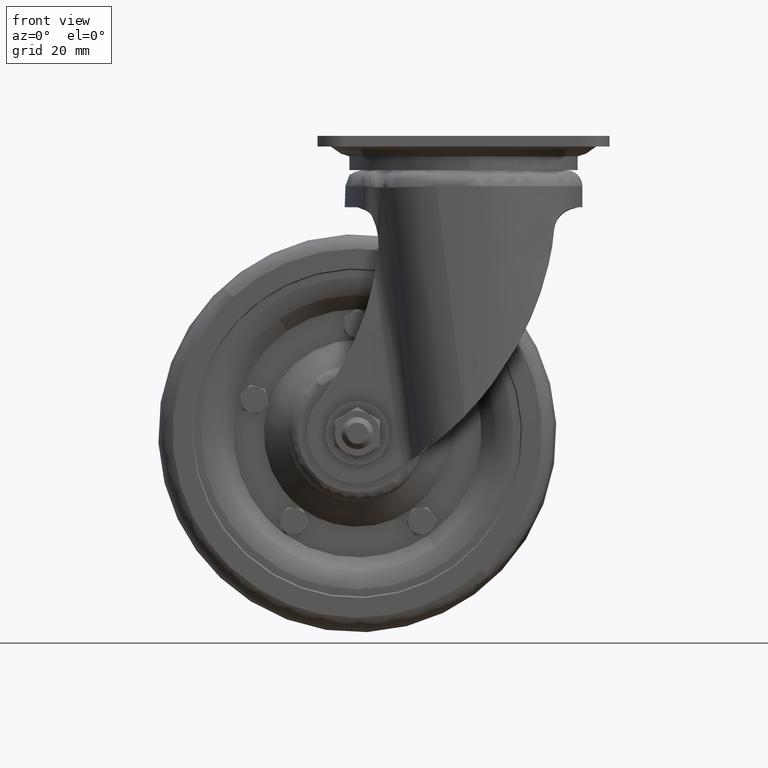
[diagram: clean part render]
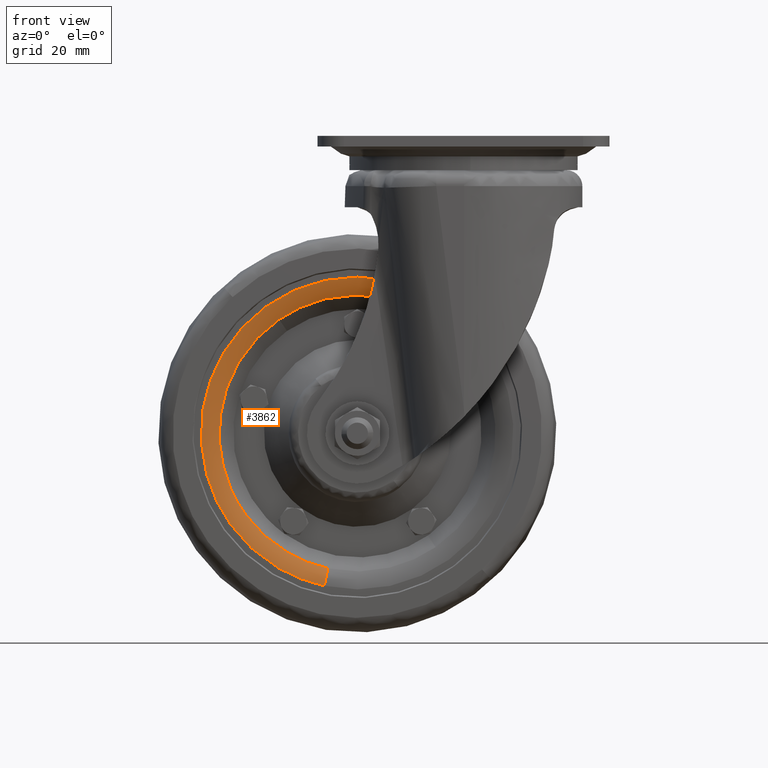
[diagram: same view with one face highlighted and labeled with its STEP entity id]
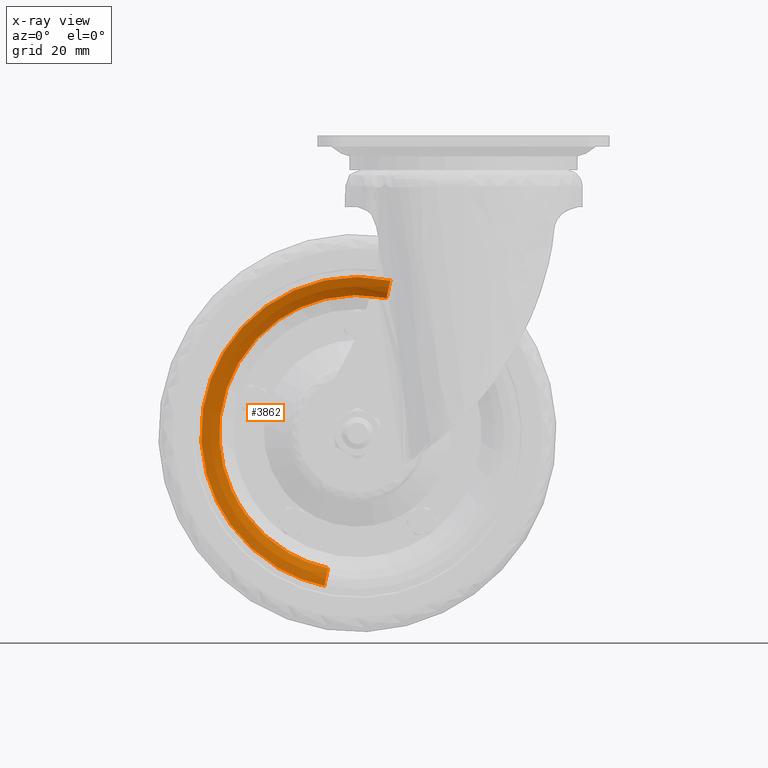
[diagram: x-ray of the same camera — body ghosted, the highlighted face saturated]
A machine part, front view. The second image highlights one B-rep face of the part: STEP entity #3862.
The next image is the same camera in x-ray: the body ghosted, the highlighted face saturated — about 0% of this face is hidden behind the body in this view.
In plain terms, the highlighted face is a freeform B-spline surface patch.
Its self-contained STEP definition (entity closure, byte-faithful):
#3461=CARTESIAN_POINT('',(-28.964682815397381,-17.857909509715110,-61.131583760881007));
#3462=VERTEX_POINT('',#3461);
#3476=CARTESIAN_POINT('',(-69.482380839538806,-17.857909509321601,-69.102873664323965));
#3477=VERTEX_POINT('',#3476);
#3478=CARTESIAN_POINT('',(-28.964682815397378,-17.857909509715114,-61.131583760881007));
#3479=CARTESIAN_POINT('',(-50.945797322300841,-17.857909509592400,-56.363032831381247));
#3480=CARTESIAN_POINT('',(-69.482380839538806,-17.857909509321598,-69.102873664323965));
#3488=(BOUNDED_CURVE()B_SPLINE_CURVE(2,(#3478,#3479,#3480),.UNSPECIFIED.,.F.,.U.)B_SPLINE_CURVE_WITH_KNOTS((3,3),(0.616465190487903,0.745396694999986),.UNSPECIFIED.)CURVE()GEOMETRIC_REPRESENTATION_ITEM()RATIONAL_B_SPLINE_CURVE((0.854236117407653,0.843922472419575,0.989412394392386))REPRESENTATION_ITEM(''));
#3489=EDGE_CURVE('',#3462,#3477,#3488,.T.);
#3526=CARTESIAN_POINT('',(-51.035322906648531,-17.857909509715110,-162.868416239119000));
#3527=VERTEX_POINT('',#3526);
#3546=CARTESIAN_POINT('',(-82.110671027840880,-17.857909508588190,-142.595190563262210));
#3547=VERTEX_POINT('',#3546);
#3548=CARTESIAN_POINT('',(-69.482380839538806,-17.857909509321598,-69.102873664323965));
#3549=CARTESIAN_POINT('',(-70.043934780664799,-17.857909509314684,-69.488818993593412));
#3550=CARTESIAN_POINT('',(-70.595193424145435,-17.857909509307699,-69.889331832297970));
#3551=CARTESIAN_POINT('',(-112.705861591073120,-17.857909508774068,-100.484522396187690));
#3552=CARTESIAN_POINT('',(-82.110671027840880,-17.857909508588190,-142.595190563262210));
#3560=(BOUNDED_CURVE()B_SPLINE_CURVE(2,(#3548,#3549,#3550,#3551,#3552),.UNSPECIFIED.,.F.,.U.)B_SPLINE_CURVE_WITH_KNOTS((3,2,3),(0.745396694999986,0.750000000000000,1.0),.UNSPECIFIED.)CURVE()GEOMETRIC_REPRESENTATION_ITEM()RATIONAL_B_SPLINE_CURVE((0.989412394392386,0.994606892725463,1.0,0.707106781186547,1.0))REPRESENTATION_ITEM(''));
#3561=EDGE_CURVE('',#3477,#3547,#3560,.T.);
#3563=CARTESIAN_POINT('',(-82.110671027840880,-17.857909508588190,-142.595190563262210));
#3564=CARTESIAN_POINT('',(-70.439739247158471,-17.857909509151646,-158.658850451944230));
#3565=CARTESIAN_POINT('',(-51.035322906648531,-17.857909509715114,-162.868416239118970));
#3573=(BOUNDED_CURVE()B_SPLINE_CURVE(2,(#3563,#3564,#3565),.UNSPECIFIED.,.F.,.U.)B_SPLINE_CURVE_WITH_KNOTS((3,3),(0.0,0.116465190487903),.UNSPECIFIED.)CURVE()GEOMETRIC_REPRESENTATION_ITEM()RATIONAL_B_SPLINE_CURVE((1.0,0.863552541913105,0.854236117407653))REPRESENTATION_ITEM(''));
#3574=EDGE_CURVE('',#3547,#3527,#3573,.T.);
#3732=CARTESIAN_POINT('',(-52.471053661721697,-20.500000000000000,-169.486561372482210));
#3733=VERTEX_POINT('',#3732);
#3734=CARTESIAN_POINT('',(-52.471053661721697,-20.500000000000004,-169.486561372482130));
#3735=CARTESIAN_POINT('',(-51.643920213268849,-20.499999999975536,-165.673806657025350));
#3736=CARTESIAN_POINT('',(-51.035322906648531,-17.857909509715114,-162.868416239119030));
#3744=(BOUNDED_CURVE()B_SPLINE_CURVE(2,(#3734,#3735,#3736),.UNSPECIFIED.,.F.,.U.)B_SPLINE_CURVE_WITH_KNOTS((3,3),(-1.543202143004318,-0.452978582613576),.UNSPECIFIED.)CURVE()GEOMETRIC_REPRESENTATION_ITEM()RATIONAL_B_SPLINE_CURVE((0.924947443635576,0.861895910440424,0.925390761300254))REPRESENTATION_ITEM(''));
#3745=EDGE_CURVE('',#3733,#3527,#3744,.T.);
#3764=CARTESIAN_POINT('',(-27.528952060324169,-20.500000000000000,-54.513438627517822));
#3765=VERTEX_POINT('',#3764);
#3779=CARTESIAN_POINT('',(-27.528952060324180,-20.499999999999993,-54.513438627517822));
#3780=CARTESIAN_POINT('',(-28.356085508777060,-20.499999999975536,-58.326193342974591));
#3781=CARTESIAN_POINT('',(-28.964682815397385,-17.857909509715114,-61.131583760881007));
#3789=(BOUNDED_CURVE()B_SPLINE_CURVE(2,(#3779,#3780,#3781),.UNSPECIFIED.,.F.,.U.)B_SPLINE_CURVE_WITH_KNOTS((3,3),(-1.543202143004321,-0.452978582613577),.UNSPECIFIED.)CURVE()GEOMETRIC_REPRESENTATION_ITEM()RATIONAL_B_SPLINE_CURVE((0.924947443635576,0.861895910440424,0.925390761300254))REPRESENTATION_ITEM(''));
#3790=EDGE_CURVE('',#3765,#3462,#3789,.T.);
#3796=CARTESIAN_POINT('',(-25.835218069340929,-20.493451642663306,-54.510623722850006));
#3797=CARTESIAN_POINT('',(-26.639020743517356,-20.493451642663306,-54.336247942770896));
#3798=CARTESIAN_POINT('',(-85.292411328443691,-20.493451642663313,-41.612066914123425));
#3799=CARTESIAN_POINT('',(-97.840173637671597,-20.493451642663317,-99.452237690772066));
#3800=CARTESIAN_POINT('',(-110.387935946899550,-20.493451642663313,-157.292408467420700));
#3801=CARTESIAN_POINT('',(-51.734545361959817,-20.493451642663302,-170.016589496071160));
#3802=CARTESIAN_POINT('',(-50.930742687770305,-20.493451642663302,-170.190965276153090));
#3803=CARTESIAN_POINT('',(-26.869514628961593,-20.649926834028495,-58.708432935815331));
#3804=CARTESIAN_POINT('',(-27.614624541282392,-20.649926834028495,-58.546789877910911));
#3805=CARTESIAN_POINT('',(-81.985210905441420,-20.649926834028509,-46.751714151989184));
#3806=CARTESIAN_POINT('',(-93.616749807237611,-20.649926834028495,-100.368461098203800));
#3807=CARTESIAN_POINT('',(-105.248288709033740,-20.649926834028509,-153.985208044418440));
#3808=CARTESIAN_POINT('',(-50.877702344862321,-20.649926834028502,-165.780283770342920));
#3809=CARTESIAN_POINT('',(-50.132592432529393,-20.649926834028498,-165.941926828249960));
#3810=CARTESIAN_POINT('',(-27.605193134658212,-17.608181403912067,-61.694267105201341));
#3811=CARTESIAN_POINT('',(-28.308555829572594,-17.608181403912063,-61.541680627767782));
#3812=CARTESIAN_POINT('',(-79.632852442481976,-17.608181403912059,-50.407462558565655));
#3813=CARTESIAN_POINT('',(-90.612696372469628,-17.608181403912067,-101.020156070012330));
#3814=CARTESIAN_POINT('',(-101.592540302457340,-17.608181403912059,-151.632849581459030));
#3815=CARTESIAN_POINT('',(-50.268243689536227,-17.608181403912067,-162.767067650663760));
#3816=CARTESIAN_POINT('',(-49.564880994610320,-17.608181403912059,-162.919654128099780));
#3824=(BOUNDED_SURFACE()B_SPLINE_SURFACE(2,2,((#3796,#3803,#3810),(#3797,#3804,#3811),(#3798,#3805,#3812),(#3799,#3806,#3813),(#3800,#3807,#3814),(#3801,#3808,#3815),(#3802,#3809,#3816)),.UNSPECIFIED.,.F.,.F.,.U.)B_SPLINE_SURFACE_WITH_KNOTS((3,1,2,1,3),(3,3),(0.0,1.961237259312394,100.023100224990800,198.084963190669210,200.046200450014110),(0.0,8.281329127914592),.UNSPECIFIED.)GEOMETRIC_REPRESENTATION_ITEM()RATIONAL_B_SPLINE_SURFACE(((0.942475955900028,0.865279168197968,0.942969271415175),(0.937018991882714,0.860269175893942,0.937509451086251),(0.658713826999516,0.604759568388501,0.659058614310923),(0.931562027865400,0.855259183589917,0.932049630757326),(0.658713826999516,0.604759568388501,0.659058614310923),(0.937018991882804,0.860269175894025,0.937509451086341),(0.942475955900209,0.865279168198134,0.942969271415356)))REPRESENTATION_ITEM('')SURFACE());
#3825=ORIENTED_EDGE('',*,*,#3574,.F.);
#3826=ORIENTED_EDGE('',*,*,#3561,.F.);
#3827=ORIENTED_EDGE('',*,*,#3489,.F.);
#3828=ORIENTED_EDGE('',*,*,#3790,.F.);
#3829=CARTESIAN_POINT('',(-87.589404872051347,-20.500000000000000,-146.575723604081990));
#3830=VERTEX_POINT('',#3829);
#3831=CARTESIAN_POINT('',(-27.528952060324176,-20.500000000000000,-54.513438627517822));
#3832=CARTESIAN_POINT('',(-53.268019275235162,-20.500000000000000,-48.929642917069820));
#3833=CARTESIAN_POINT('',(-74.575726465114116,-20.500000000000000,-64.410597989013922));
#3834=CARTESIAN_POINT('',(-122.165128476135860,-20.500000000000007,-98.986321593065242));
#3835=CARTESIAN_POINT('',(-87.589404872051347,-20.500000000000000,-146.575723604081990));
#3843=(BOUNDED_CURVE()B_SPLINE_CURVE(2,(#3831,#3832,#3833,#3834,#3835),.UNSPECIFIED.,.F.,.U.)B_SPLINE_CURVE_WITH_KNOTS((3,2,3),(0.616465190487839,0.750000000000000,1.0),.UNSPECIFIED.)CURVE()GEOMETRIC_REPRESENTATION_ITEM()RATIONAL_B_SPLINE_CURVE((0.854236117407663,0.843554239273367,1.0,0.707106781186548,1.0))REPRESENTATION_ITEM(''));
#3844=EDGE_CURVE('',#3765,#3830,#3843,.T.);
#3845=ORIENTED_EDGE('',*,*,#3844,.T.);
#3846=CARTESIAN_POINT('',(-87.589404872051347,-20.500000000000000,-146.575723604081990));
#3847=CARTESIAN_POINT('',(-74.400047197647737,-20.500000000000004,-164.729317490370450));
#3848=CARTESIAN_POINT('',(-52.471053661721697,-20.500000000000000,-169.486561372482130));
#3856=(BOUNDED_CURVE()B_SPLINE_CURVE(2,(#3846,#3847,#3848),.UNSPECIFIED.,.F.,.U.)B_SPLINE_CURVE_WITH_KNOTS((3,3),(0.0,0.116465190487839),.UNSPECIFIED.)CURVE()GEOMETRIC_REPRESENTATION_ITEM()RATIONAL_B_SPLINE_CURVE((1.0,0.863552541913180,0.854236117407663))REPRESENTATION_ITEM(''));
#3857=EDGE_CURVE('',#3830,#3733,#3856,.T.);
#3858=ORIENTED_EDGE('',*,*,#3857,.T.);
#3859=ORIENTED_EDGE('',*,*,#3745,.T.);
#3860=EDGE_LOOP('',(#3825,#3826,#3827,#3828,#3845,#3858,#3859));
#3861=FACE_OUTER_BOUND('',#3860,.T.);
#3862=ADVANCED_FACE('',(#3861),#3824,.T.);